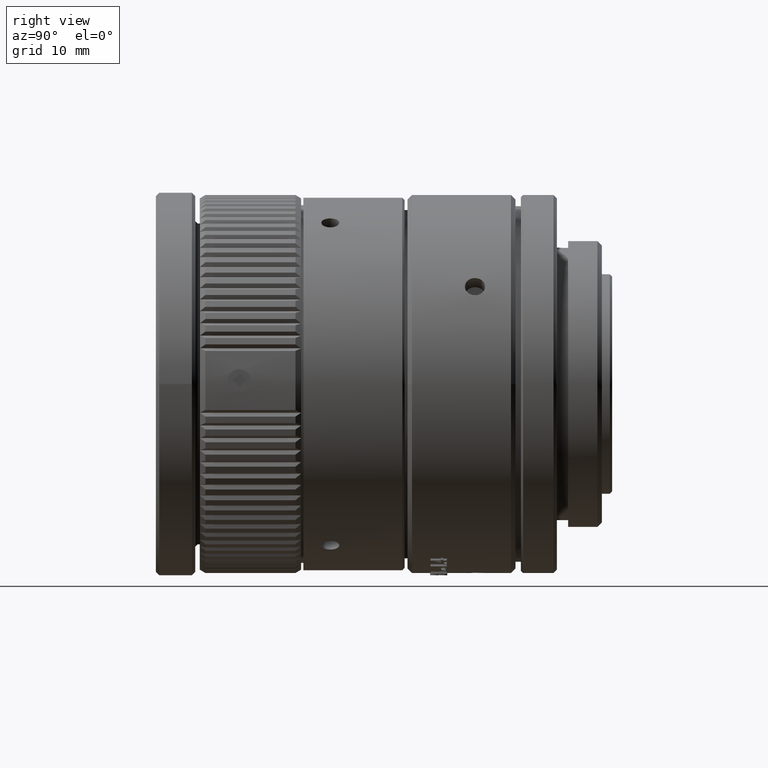
[diagram: clean part render]
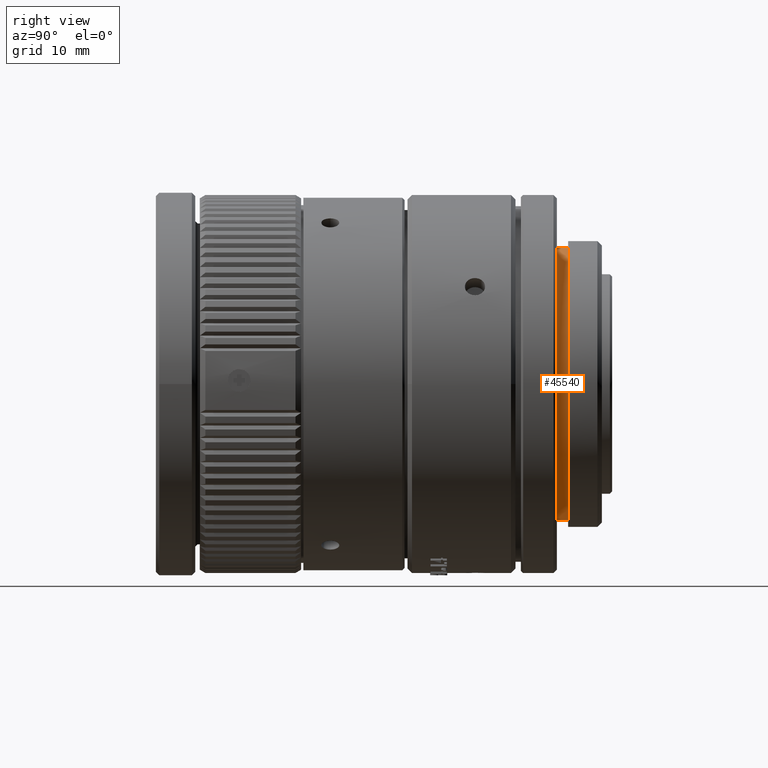
[diagram: same view with one face highlighted and labeled with its STEP entity id]
A machine part, right view. The second image highlights one B-rep face of the part: STEP entity #45540.
In plain terms, the highlighted cylindrical surface (partial cylindrical patch) has radius 12.1 mm, axis along (0, 1, 0).
Its self-contained STEP definition (entity closure, byte-faithful):
#2474 = CARTESIAN_POINT ( 'NONE',  ( -9.878817513121980056E-16, 22.53000000000215408, 12.09999999999999964 ) ) ;
#2968 = ORIENTED_EDGE ( 'NONE', *, *, #38388, .T. ) ;
#3434 = CARTESIAN_POINT ( 'NONE',  ( 1.583886296184829678, 22.53000000000325542, -12.10000000000000142 ) ) ;
#3472 = VERTEX_POINT ( 'NONE', #37191 ) ;
#5633 = ORIENTED_EDGE ( 'NONE', *, *, #43566, .T. ) ;
#6521 = B_SPLINE_CURVE_WITH_KNOTS ( 'NONE', 3,
 ( #18904, #11282, #6644, #52603 ),
 .UNSPECIFIED., .F., .F.,
 ( 4, 4 ),
 ( 0.000000000000000000, 1.000000000000000000 ),
 .UNSPECIFIED. ) ;
#6644 = CARTESIAN_POINT ( 'NONE',  ( 0.000000000000000000, 22.86333333333443818, 12.09999999999999964 ) ) ;
#6716 = CARTESIAN_POINT ( 'NONE',  ( 12.09999999999999964, 23.52999999999681435, 1.583886296184842335 ) ) ;
#7471 = CARTESIAN_POINT ( 'NONE',  ( 7.436015311696451136, 22.53000000000325187, -9.675968793017993619 ) ) ;
#7735 = CARTESIAN_POINT ( 'NONE',  ( 11.78506938768661172, 22.53000000000325542, -3.167149400747304444 ) ) ;
#10524 = CARTESIAN_POINT ( 'NONE',  ( 10.57281529908651407, 23.52999999999681435, -6.093789662487896663 ) ) ;
#10798 = CARTESIAN_POINT ( 'NONE',  ( 11.78506938768660817, 23.52999999999681435, -3.167149400747303112 ) ) ;
#11163 = B_SPLINE_CURVE_WITH_KNOTS ( 'NONE', 3,
 ( #36851, #48783, #53420, #11288, #11567, #44160, #28145, #23529, #40102, #23804, #7735, #44700, #32766, #7471, #24076, #49332, #3434, #36582 ),
 .UNSPECIFIED., .F., .F.,
 ( 4, 2, 2, 2, 2, 2, 2, 2, 4 ),
 ( 0.000000000000000000, 0.1249999999999999167, 0.2499999999999998335, 0.3749999999999998335, 0.4999999999999998890, 0.6249999999999998890, 0.7499999999999998890, 0.8750000000000000000, 1.000000000000000000 ),
 .UNSPECIFIED. ) ;
#11282 = CARTESIAN_POINT ( 'NONE',  ( 0.000000000000000000, 23.19666666666562804, 12.09999999999999964 ) ) ;
#11288 = CARTESIAN_POINT ( 'NONE',  ( 6.093789662487885117, 22.53000000000325187, 10.57281529908651940 ) ) ;
#11356 = CARTESIAN_POINT ( 'NONE',  ( 12.09999999999999787, 23.52999999999681435, -1.583886296184867648 ) ) ;
#11567 = CARTESIAN_POINT ( 'NONE',  ( 7.436015311696476004, 22.53000000000325898, 9.675968793017974079 ) ) ;
#11733 = CARTESIAN_POINT ( 'NONE',  ( 4.096405926532624883E-16, 23.52999999999785175, -12.09999999999999964 ) ) ;
#14894 = CARTESIAN_POINT ( 'NONE',  ( 4.096405926532624883E-16, 23.52999999999785175, -12.09999999999999964 ) ) ;
#15170 = CARTESIAN_POINT ( 'NONE',  ( 6.093789662487886893, 23.52999999999682146, 10.57281529908652118 ) ) ;
#15384 = B_SPLINE_CURVE_WITH_KNOTS ( 'NONE', 3,
 ( #14894, #48022, #47745, #22513, #23596, #35002, #10524, #10798, #11356, #6716, #27941, #48290, #23316, #35817, #15170, #31746, #44502, #51575 ),
 .UNSPECIFIED., .F., .F.,
 ( 4, 2, 2, 2, 2, 2, 2, 2, 4 ),
 ( 0.000000000000000000, 0.1250000000000000555, 0.2500000000000001110, 0.3750000000000001110, 0.5000000000000001110, 0.6250000000000001110, 0.7500000000000002220, 0.8750000000000001110, 1.000000000000000000 ),
 .UNSPECIFIED. ) ;
#17205 = VERTEX_POINT ( 'NONE', #29197 ) ;
#17993 = EDGE_CURVE ( 'NONE', #18675, #3472, #11163, .T. ) ;
#18675 = VERTEX_POINT ( 'NONE', #2474 ) ;
#18904 = CARTESIAN_POINT ( 'NONE',  ( -9.878817513121980056E-16, 23.52999999999785175, 12.09999999999999964 ) ) ;
#19759 = FACE_OUTER_BOUND ( 'NONE', #34041, .T. ) ;
#20491 = ORIENTED_EDGE ( 'NONE', *, *, #17993, .T. ) ;
#22513 = CARTESIAN_POINT ( 'NONE',  ( 6.093789662487864689, 23.52999999999681435, -10.57281529908653006 ) ) ;
#23316 = CARTESIAN_POINT ( 'NONE',  ( 9.675968793017984737, 23.52999999999681080, 7.436015311696461794 ) ) ;
#23529 = CARTESIAN_POINT ( 'NONE',  ( 11.78506938768662593, 22.53000000000325542, 3.167149400747278687 ) ) ;
#23553 = CYLINDRICAL_SURFACE ( 'NONE', #28498, 12.09999999999999964 ) ;
#23596 = CARTESIAN_POINT ( 'NONE',  ( 7.436015311696453800, 23.52999999999681435, -9.675968793017991842 ) ) ;
#23804 = CARTESIAN_POINT ( 'NONE',  ( 12.09999999999999787, 22.53000000000325187, -1.583886296184867870 ) ) ;
#24076 = CARTESIAN_POINT ( 'NONE',  ( 6.093789662487866465, 22.53000000000325542, -10.57281529908652828 ) ) ;
#27153 = EDGE_CURVE ( 'NONE', #17205, #18675, #6521, .T. ) ;
#27889 = VERTEX_POINT ( 'NONE', #36987 ) ;
#27941 = CARTESIAN_POINT ( 'NONE',  ( 11.78506938768662060, 23.52999999999681435, 3.167149400747279131 ) ) ;
#28145 = CARTESIAN_POINT ( 'NONE',  ( 10.57281529908652828, 22.53000000000325898, 6.093789662487875347 ) ) ;
#28406 = B_SPLINE_CURVE_WITH_KNOTS ( 'NONE', 3,
 ( #32930, #28586, #52506, #11733 ),
 .UNSPECIFIED., .F., .F.,
 ( 4, 4 ),
 ( 0.000000000000000000, 1.000000000000000000 ),
 .UNSPECIFIED. ) ;
#28498 = AXIS2_PLACEMENT_3D ( 'NONE', #36334, #40935, #33845 ) ;
#28586 = CARTESIAN_POINT ( 'NONE',  ( -2.538557456896049235E-14, 22.86333333333443818, -12.09999999999999964 ) ) ;
#29197 = CARTESIAN_POINT ( 'NONE',  ( -9.878817513121980056E-16, 23.52999999999785175, 12.09999999999999964 ) ) ;
#31746 = CARTESIAN_POINT ( 'NONE',  ( 3.167149400747294230, 23.52999999999682501, 11.78506938768662238 ) ) ;
#32766 = CARTESIAN_POINT ( 'NONE',  ( 9.675968793017968750, 22.53000000000325542, -7.436015311696484886 ) ) ;
#32930 = CARTESIAN_POINT ( 'NONE',  ( 9.878817513121980056E-16, 22.53000000000215408, -12.09999999999999964 ) ) ;
#33845 = DIRECTION ( 'NONE',  ( 0.000000000000000000, 0.000000000000000000, 1.000000000000000000 ) ) ;
#34041 = EDGE_LOOP ( 'NONE', ( #2968, #46410, #20491, #5633 ) ) ;
#35002 = CARTESIAN_POINT ( 'NONE',  ( 9.675968793017965197, 23.52999999999681435, -7.436015311696487551 ) ) ;
#35817 = CARTESIAN_POINT ( 'NONE',  ( 7.436015311696476893, 23.52999999999682501, 9.675968793017975855 ) ) ;
#36334 = CARTESIAN_POINT ( 'NONE',  ( 0.000000000000000000, 22.53000000000325187, 0.000000000000000000 ) ) ;
#36582 = CARTESIAN_POINT ( 'NONE',  ( 9.878817513121980056E-16, 22.53000000000215408, -12.09999999999999964 ) ) ;
#36851 = CARTESIAN_POINT ( 'NONE',  ( -9.878817513121980056E-16, 22.53000000000215408, 12.09999999999999964 ) ) ;
#36987 = CARTESIAN_POINT ( 'NONE',  ( 4.096405926532624883E-16, 23.52999999999785175, -12.09999999999999964 ) ) ;
#37191 = CARTESIAN_POINT ( 'NONE',  ( 9.878817513121980056E-16, 22.53000000000215408, -12.09999999999999964 ) ) ;
#38388 = EDGE_CURVE ( 'NONE', #27889, #17205, #15384, .T. ) ;
#40102 = CARTESIAN_POINT ( 'NONE',  ( 12.10000000000000142, 22.53000000000325542, 1.583886296184843223 ) ) ;
#40935 = DIRECTION ( 'NONE',  ( 0.000000000000000000, 1.000000000000000000, 0.000000000000000000 ) ) ;
#43566 = EDGE_CURVE ( 'NONE', #3472, #27889, #28406, .T. ) ;
#44160 = CARTESIAN_POINT ( 'NONE',  ( 9.675968793017984737, 22.53000000000325187, 7.436015311696464458 ) ) ;
#44502 = CARTESIAN_POINT ( 'NONE',  ( 1.583886296184854103, 23.52999999999681791, 12.10000000000000497 ) ) ;
#44700 = CARTESIAN_POINT ( 'NONE',  ( 10.57281529908651230, 22.53000000000325187, -6.093789662487897552 ) ) ;
#45540 = ADVANCED_FACE ( 'NONE', ( #19759 ), #23553, .T. ) ;
#46410 = ORIENTED_EDGE ( 'NONE', *, *, #27153, .T. ) ;
#47745 = CARTESIAN_POINT ( 'NONE',  ( 3.167149400747269805, 23.52999999999681435, -11.78506938768662415 ) ) ;
#48022 = CARTESIAN_POINT ( 'NONE',  ( 1.583886296184828568, 23.52999999999681435, -12.10000000000000320 ) ) ;
#48290 = CARTESIAN_POINT ( 'NONE',  ( 10.57281529908652473, 23.52999999999682501, 6.093789662487877123 ) ) ;
#48783 = CARTESIAN_POINT ( 'NONE',  ( 1.583886296184854992, 22.53000000000324476, 12.09999999999999787 ) ) ;
#49332 = CARTESIAN_POINT ( 'NONE',  ( 3.167149400747271137, 22.53000000000325187, -11.78506938768662771 ) ) ;
#51575 = CARTESIAN_POINT ( 'NONE',  ( -9.878817513121980056E-16, 23.52999999999785175, 12.09999999999999964 ) ) ;
#52506 = CARTESIAN_POINT ( 'NONE',  ( -2.538557456896049235E-14, 23.19666666666562804, -12.09999999999999964 ) ) ;
#52603 = CARTESIAN_POINT ( 'NONE',  ( -9.878817513121980056E-16, 22.53000000000215408, 12.09999999999999964 ) ) ;
#53420 = CARTESIAN_POINT ( 'NONE',  ( 3.167149400747292454, 22.53000000000325187, 11.78506938768661882 ) ) ;